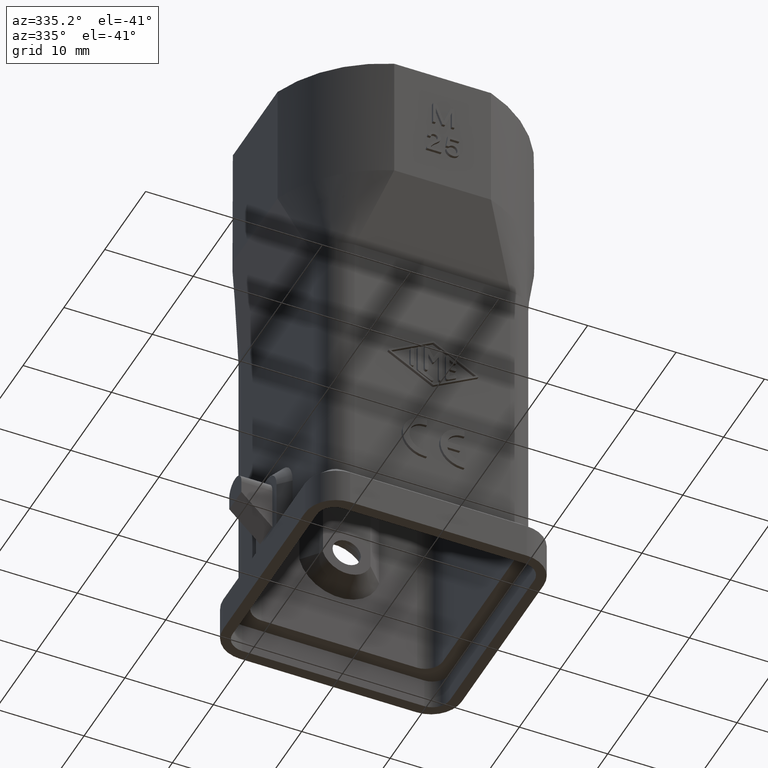
[diagram: clean part render]
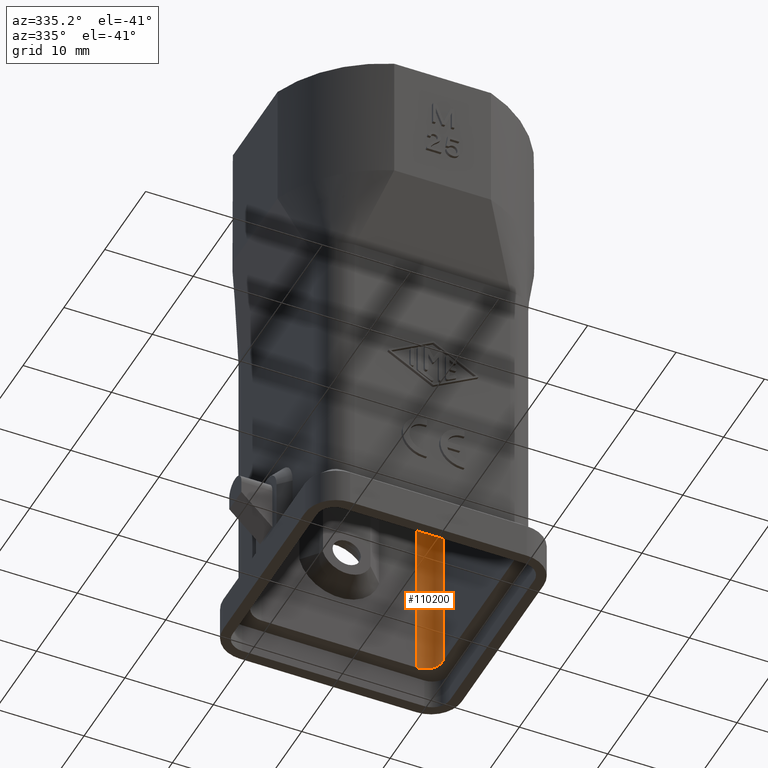
[diagram: same view with one face highlighted and labeled with its STEP entity id]
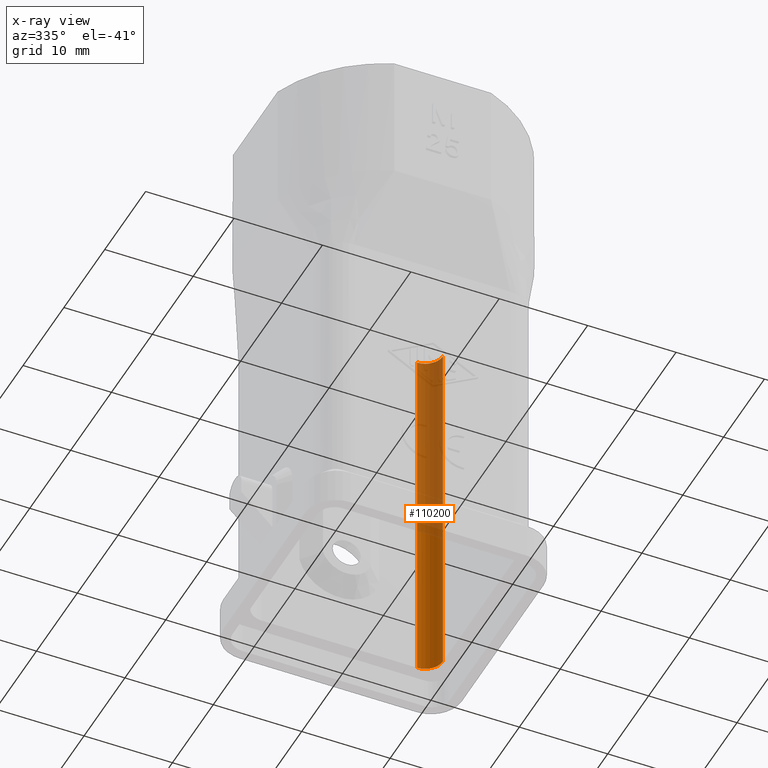
[diagram: x-ray of the same camera — body ghosted, the highlighted face saturated]
A machine part, auxiliary view. The second image highlights one B-rep face of the part: STEP entity #110200.
The next image is the same camera in x-ray: the body ghosted, the highlighted face saturated — about 57% of this face is hidden behind the body in this view.
In plain terms, the highlighted cylindrical surface (edge-blend (fillet) strip) has radius 2 mm, axis along (0, 0, 1).
Its self-contained STEP definition (entity closure, byte-faithful):
#55120=CARTESIAN_POINT('',(53.265603,49.159071,41.5));
#55130=VERTEX_POINT('',#55120);
#55160=CARTESIAN_POINT('',(51.265603,49.159071,41.5));
#55170=DIRECTION('',(0.,0.,1.));
#55180=DIRECTION('',(1.,0.,-0.));
#55190=AXIS2_PLACEMENT_3D('',#55160,#55170,#55180);
#55200=CIRCLE('',#55190,2.);
#55210=CARTESIAN_POINT('',(51.265603,51.159071,41.5));
#55220=VERTEX_POINT('',#55210);
#55230=EDGE_CURVE('',#55130,#55220,#55200,.T.);
#58220=CARTESIAN_POINT('',(53.265603,49.159071,0.));
#58230=VERTEX_POINT('',#58220);
#58260=CARTESIAN_POINT('',(53.265603,49.159071,0.));
#58270=DIRECTION('',(-0.,-0.,-1.));
#58280=VECTOR('',#58270,1.);
#58290=LINE('',#58260,#58280);
#58300=EDGE_CURVE('',#55130,#58230,#58290,.T.);
#60850=CARTESIAN_POINT('',(51.265603,51.159071,0.));
#60860=DIRECTION('',(-0.,-0.,-1.));
#60870=VECTOR('',#60860,1.);
#60880=LINE('',#60850,#60870);
#60890=CARTESIAN_POINT('',(51.265603,51.159071,0.));
#60900=VERTEX_POINT('',#60890);
#60910=EDGE_CURVE('',#55220,#60900,#60880,.T.);
#63030=CARTESIAN_POINT('',(51.265603,49.159071,0.));
#63040=DIRECTION('',(0.,0.,1.));
#63050=DIRECTION('',(1.,0.,-0.));
#63060=AXIS2_PLACEMENT_3D('',#63030,#63040,#63050);
#63070=CIRCLE('',#63060,2.);
#63080=EDGE_CURVE('',#58230,#60900,#63070,.T.);
#110090=CARTESIAN_POINT('',(51.265603,49.159071,0.));
#110100=DIRECTION('',(0.,0.,1.));
#110110=DIRECTION('',(1.,0.,-0.));
#110120=AXIS2_PLACEMENT_3D('',#110090,#110100,#110110);
#110130=CYLINDRICAL_SURFACE('',#110120,2.);
#110140=ORIENTED_EDGE('',*,*,#63080,.F.);
#110150=ORIENTED_EDGE('',*,*,#60910,.T.);
#110160=ORIENTED_EDGE('',*,*,#55230,.T.);
#110170=ORIENTED_EDGE('',*,*,#58300,.F.);
#110180=EDGE_LOOP('',(#110170,#110160,#110150,#110140));
#110190=FACE_OUTER_BOUND('',#110180,.T.);
#110200=ADVANCED_FACE('',(#110190),#110130,.F.);